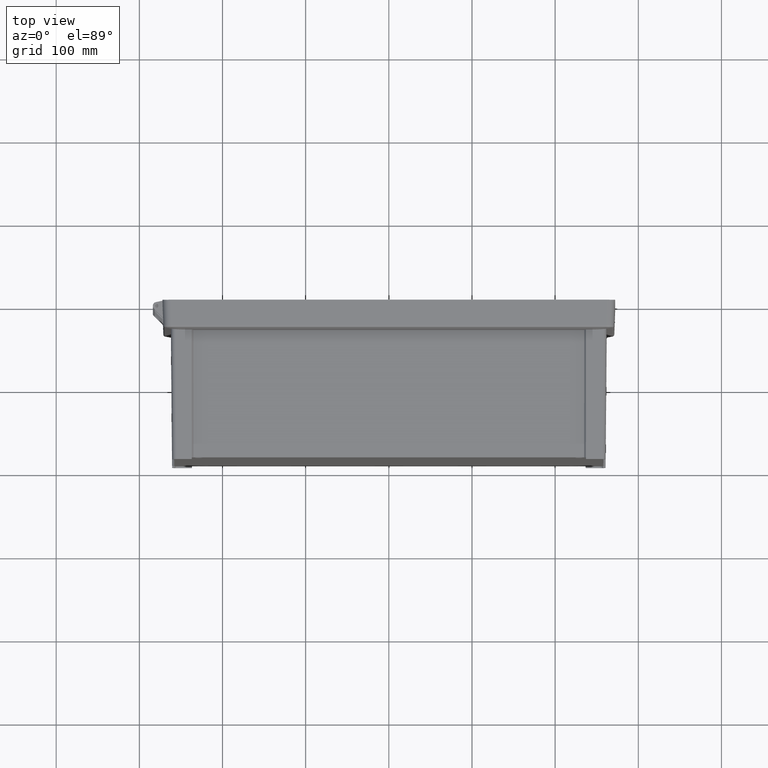
[diagram: clean part render]
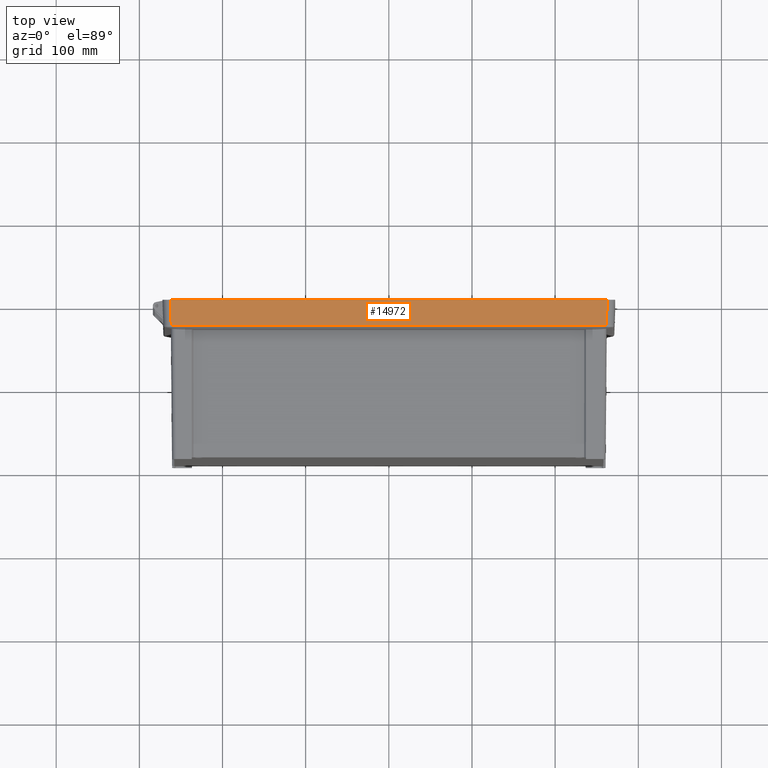
[diagram: same view with one face highlighted and labeled with its STEP entity id]
A machine part, top view. The second image highlights one B-rep face of the part: STEP entity #14972.
In plain terms, the highlighted planar face has unit normal (0, -0.0349, 0.9994).
Its self-contained STEP definition (entity closure, byte-faithful):
#566 = CARTESIAN_POINT ( 'NONE',  ( -261.6348347239999700, -30.73756002069000100, 325.9761088288000200 ) ) ;
#639 = CIRCLE ( 'NONE', #13520, 82.27899726213999500 ) ;
#1008 = CARTESIAN_POINT ( 'NONE',  ( 259.6895547440000200, -30.76059963034000300, 325.9753856095999800 ) ) ;
#1106 = EDGE_CURVE ( 'NONE', #21049, #8671, #10230, .T. ) ;
#1171 = CARTESIAN_POINT ( 'NONE',  ( -261.6348347239999700, -30.73756002069000100, 325.9761088288000200 ) ) ;
#1674 = EDGE_CURVE ( 'NONE', #30910, #7272, #10613, .T. ) ;
#1679 = CARTESIAN_POINT ( 'NONE',  ( -259.6895547440000200, -30.76059963034000300, 325.9753856095999800 ) ) ;
#1931 = CIRCLE ( 'NONE', #15889, 82.27899726213999500 ) ;
#2273 = DIRECTION ( 'NONE',  ( 0.02365609889199015900, -0.9991111529046978700, -0.03488972809664121800 ) ) ;
#2363 = CARTESIAN_POINT ( 'NONE',  ( -262.7082252971000600, 2.291589140668000000E-011, 327.0495694176000300 ) ) ;
#2551 = DIRECTION ( 'NONE',  ( 0.0000000000000000000, -0.9993908270190956500, -0.03489949670249985200 ) ) ;
#3396 = CIRCLE ( 'NONE', #28115, 82.27899726213999500 ) ;
#3830 = ORIENTED_EDGE ( 'NONE', *, *, #17178, .T. ) ;
#3851 = CARTESIAN_POINT ( 'NONE',  ( -261.9926315816661600, -20.49170857179583600, 326.3339831860911300 ) ) ;
#4087 = DIRECTION ( 'NONE',  ( 1.000000000000000000, 0.0000000000000000000, 0.0000000000000000000 ) ) ;
#5247 = EDGE_CURVE ( 'NONE', #17004, #21049, #639, .T. ) ;
#5335 = CARTESIAN_POINT ( 'NONE',  ( 260.6563971890490700, -30.75489414996193100, 325.9755848494074800 ) ) ;
#5587 = DIRECTION ( 'NONE',  ( 2.158600658246010900E-011, 0.03489949453447018000, -0.9993908270948050900 ) ) ;
#5856 = DIRECTION ( 'NONE',  ( 0.0000000000000000000, -0.03489949670249985900, 0.9993908270190957600 ) ) ;
#6913 = DIRECTION ( 'NONE',  ( -1.371550571695862000E-005, -0.9993908270008047300, -0.03489949453118701400 ) ) ;
#7118 = CARTESIAN_POINT ( 'NONE',  ( -262.3504284393830500, -10.24585428588680200, 326.6917763018554400 ) ) ;
#7272 = VERTEX_POINT ( 'NONE', #26435 ) ;
#7365 = CARTESIAN_POINT ( 'NONE',  ( -262.7082252971000600, 2.291589140668000000E-011, 327.0495694176000300 ) ) ;
#7707 = ORIENTED_EDGE ( 'NONE', *, *, #9990, .F. ) ;
#8671 = VERTEX_POINT ( 'NONE', #1008 ) ;
#8760 = DIRECTION ( 'NONE',  ( 1.000000000000000000, 0.0000000000000000000, 0.0000000000000000000 ) ) ;
#8802 = CARTESIAN_POINT ( 'NONE',  ( 259.6884461093000000, 51.46829063365999700, 328.8468815535000000 ) ) ;
#9066 = CARTESIAN_POINT ( 'NONE',  ( 115.8000000000000000, -0.1395979868099999900, 327.0446945484999900 ) ) ;
#9990 = EDGE_CURVE ( 'NONE', #23319, #10137, #3396, .T. ) ;
#10137 = VERTEX_POINT ( 'NONE', #1171 ) ;
#10176 = DIRECTION ( 'NONE',  ( -2.158600661854011100E-011, 0.03489949453447018000, -0.9993908270948050900 ) ) ;
#10230 = CIRCLE ( 'NONE', #30031, 82.27899726213999500 ) ;
#10365 = CARTESIAN_POINT ( 'NONE',  ( -262.7082252971000600, 2.291589140668000000E-011, 327.0495694176000300 ) ) ;
#10613 = LINE ( 'NONE', #7365, #28208 ) ;
#10926 = ORIENTED_EDGE ( 'NONE', *, *, #5247, .F. ) ;
#12054 = CARTESIAN_POINT ( 'NONE',  ( -259.6895745951999900, -30.76030005160000200, 325.9753960704000000 ) ) ;
#12597 = ORIENTED_EDGE ( 'NONE', *, *, #14316, .T. ) ;
#13520 = AXIS2_PLACEMENT_3D ( 'NONE', #8802, #5587, #2273 ) ;
#14316 = EDGE_CURVE ( 'NONE', #17373, #8671, #15391, .T. ) ;
#14972 = ADVANCED_FACE ( 'NONE', ( #30500 ), #15699, .T. ) ;
#15266 = DIRECTION ( 'NONE',  ( -1.371550571695862000E-005, -0.9993908270008047300, -0.03489949453118701400 ) ) ;
#15391 = LINE ( 'NONE', #12054, #26396 ) ;
#15699 = PLANE ( 'NONE',  #27650 ) ;
#15889 = AXIS2_PLACEMENT_3D ( 'NONE', #21798, #18543, #15266 ) ;
#16540 = ORIENTED_EDGE ( 'NONE', *, *, #1106, .F. ) ;
#17004 = VERTEX_POINT ( 'NONE', #25673 ) ;
#17132 = EDGE_CURVE ( 'NONE', #17373, #23319, #1931, .T. ) ;
#17178 = EDGE_CURVE ( 'NONE', #30910, #10137, #22618, .T. ) ;
#17373 = VERTEX_POINT ( 'NONE', #1679 ) ;
#18482 = DIRECTION ( 'NONE',  ( 0.02365609889199015900, -0.9991111529046978700, -0.03488972809664121800 ) ) ;
#18543 = DIRECTION ( 'NONE',  ( -2.158600661854011100E-011, 0.03489949453447018000, -0.9993908270948050900 ) ) ;
#18628 = EDGE_LOOP ( 'NONE', ( #3830, #7707, #25593, #12597, #16540, #10926, #26574, #23816 ) ) ;
#19477 = CARTESIAN_POINT ( 'NONE',  ( 261.6348347239999700, -30.73756002069000100, 325.9761088288000200 ) ) ;
#20100 = B_SPLINE_CURVE_WITH_KNOTS ( 'NONE', 3,
 ( #29342, #26030, #22770, #19477 ),
 .UNSPECIFIED., .F., .F.,
 ( 4, 4 ),
 ( 0.0000000000000000000, 1.000000000000000000 ),
 .UNSPECIFIED. ) ;
#21049 = VERTEX_POINT ( 'NONE', #5335 ) ;
#21737 = DIRECTION ( 'NONE',  ( 2.158600658246010900E-011, 0.03489949453447018000, -0.9993908270948050900 ) ) ;
#21798 = CARTESIAN_POINT ( 'NONE',  ( -259.6884461093000000, 51.46829063365999700, 328.8468815535000000 ) ) ;
#22391 = EDGE_CURVE ( 'NONE', #7272, #17004, #20100, .T. ) ;
#22618 = B_SPLINE_CURVE_WITH_KNOTS ( 'NONE', 3,
 ( #10365, #7118, #3851, #566 ),
 .UNSPECIFIED., .F., .F.,
 ( 4, 4 ),
 ( 0.0000000000000000000, 1.000000000000000000 ),
 .UNSPECIFIED. ) ;
#22770 = CARTESIAN_POINT ( 'NONE',  ( 261.9926315816022100, -20.49170857179342100, 326.3339831860859000 ) ) ;
#23319 = VERTEX_POINT ( 'NONE', #23447 ) ;
#23355 = CARTESIAN_POINT ( 'NONE',  ( -259.6884461093000000, 51.46829063365999700, 328.8468815535000000 ) ) ;
#23447 = CARTESIAN_POINT ( 'NONE',  ( -260.6563971890490700, -30.75489414996193100, 325.9755848494074800 ) ) ;
#23816 = ORIENTED_EDGE ( 'NONE', *, *, #1674, .F. ) ;
#25024 = CARTESIAN_POINT ( 'NONE',  ( 259.6884461093000000, 51.46829063365999700, 328.8468815535000000 ) ) ;
#25593 = ORIENTED_EDGE ( 'NONE', *, *, #17132, .F. ) ;
#25673 = CARTESIAN_POINT ( 'NONE',  ( 261.6348347239999700, -30.73756002069000100, 325.9761088288000200 ) ) ;
#26030 = CARTESIAN_POINT ( 'NONE',  ( 262.3504284393511600, -10.24585428588557400, 326.6917763018523700 ) ) ;
#26396 = VECTOR ( 'NONE', #8760, 1000.000000000000000 ) ;
#26435 = CARTESIAN_POINT ( 'NONE',  ( 262.7082252971000600, 2.291495696897000000E-011, 327.0495694176000300 ) ) ;
#26574 = ORIENTED_EDGE ( 'NONE', *, *, #22391, .F. ) ;
#27650 = AXIS2_PLACEMENT_3D ( 'NONE', #9066, #5856, #2551 ) ;
#28115 = AXIS2_PLACEMENT_3D ( 'NONE', #23355, #10176, #6913 ) ;
#28208 = VECTOR ( 'NONE', #4087, 1000.000000000000000 ) ;
#29342 = CARTESIAN_POINT ( 'NONE',  ( 262.7082252971000600, 2.291495696897000000E-011, 327.0495694176000300 ) ) ;
#30031 = AXIS2_PLACEMENT_3D ( 'NONE', #25024, #21737, #18482 ) ;
#30500 = FACE_OUTER_BOUND ( 'NONE', #18628, .T. ) ;
#30910 = VERTEX_POINT ( 'NONE', #2363 ) ;